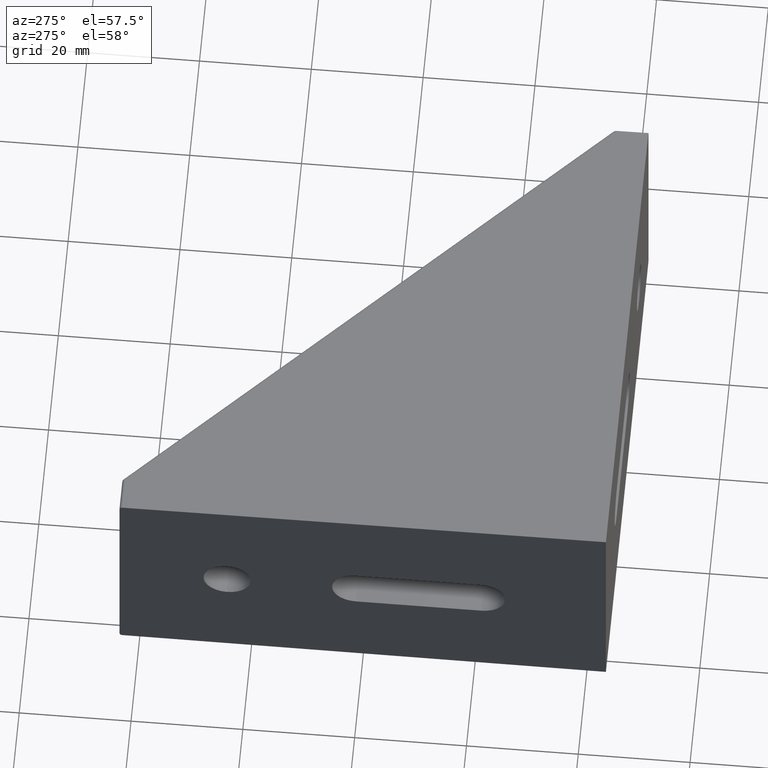
[diagram: clean part render]
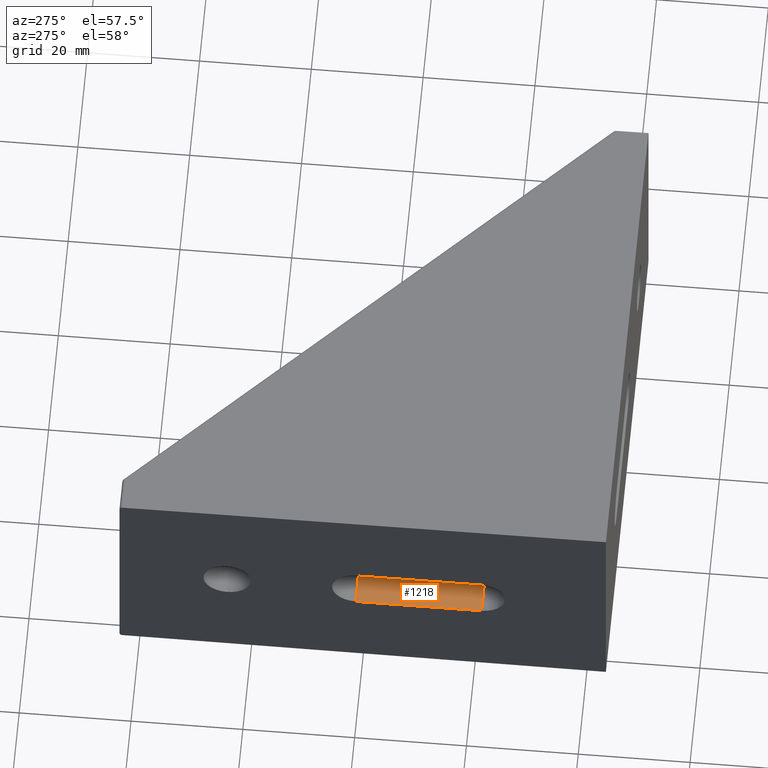
[diagram: same view with one face highlighted and labeled with its STEP entity id]
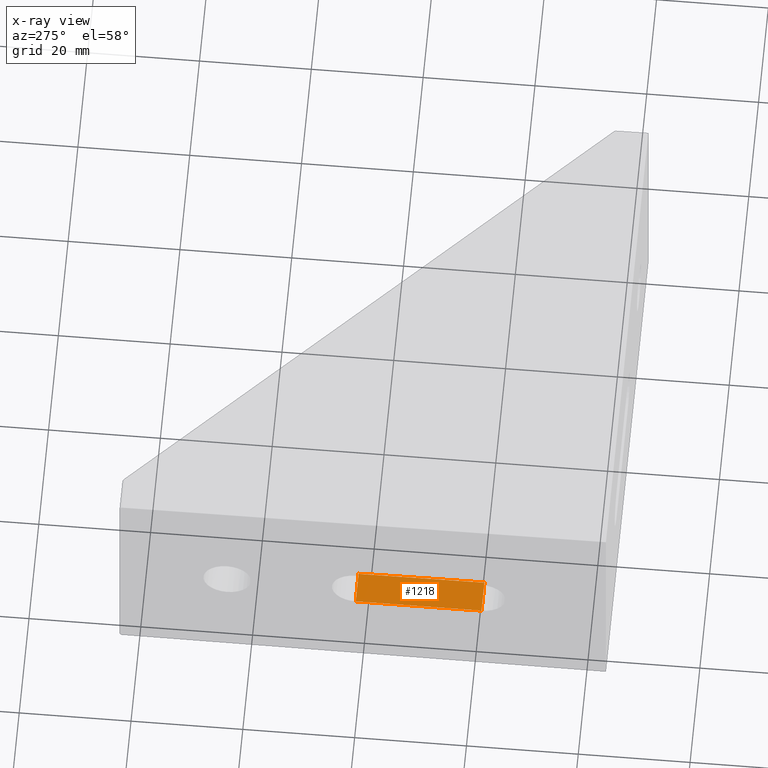
[diagram: x-ray of the same camera — body ghosted, the highlighted face saturated]
A machine part, auxiliary view. The second image highlights one B-rep face of the part: STEP entity #1218.
The next image is the same camera in x-ray: the body ghosted, the highlighted face saturated — about 0% of this face is hidden behind the body in this view.
In plain terms, the highlighted planar face has unit normal (0, 0, -1).
Its self-contained STEP definition (entity closure, byte-faithful):
#527=CARTESIAN_POINT('',(-43.500000000000000,-21.250000000000000,-4.250000000000009));
#528=VERTEX_POINT('',#527);
#536=CARTESIAN_POINT('',(-43.500000000000000,1.250000000000001,-4.250000000000009));
#537=VERTEX_POINT('',#536);
#538=CARTESIAN_POINT('',(-43.500000000000000,-21.250000000000000,-4.250000000000009));
#539=DIRECTION('',(0.0,1.0,0.0));
#540=VECTOR('',#539,22.500000000000000);
#541=LINE('',#538,#540);
#542=EDGE_CURVE('',#528,#537,#541,.T.);
#919=CARTESIAN_POINT('',(-37.570904450836402,-21.250000000000000,-4.250000000000009));
#920=VERTEX_POINT('',#919);
#943=CARTESIAN_POINT('',(-37.669079844302175,1.250000000000001,-4.250000000000005));
#944=VERTEX_POINT('',#943);
#959=CARTESIAN_POINT('',(-37.570904450836402,-21.249999999999996,-4.250000000000008));
#960=DIRECTION('',(-0.004363309284747,0.999990480720734,1.184227E-016));
#961=VECTOR('',#960,22.500214185822365);
#962=LINE('',#959,#961);
#963=EDGE_CURVE('',#920,#944,#962,.T.);
#1157=CARTESIAN_POINT('',(-43.500000000000000,-21.250000000000000,-4.250000000000009));
#1158=DIRECTION('',(1.0,0.0,0.0));
#1159=VECTOR('',#1158,5.929095549163598);
#1160=LINE('',#1157,#1159);
#1161=EDGE_CURVE('',#528,#920,#1160,.T.);
#1198=CARTESIAN_POINT('',(-43.500000000000000,1.250000000000001,-4.250000000000005));
#1199=DIRECTION('',(1.0,0.0,0.0));
#1200=VECTOR('',#1199,5.830920155697825);
#1201=LINE('',#1198,#1200);
#1202=EDGE_CURVE('',#537,#944,#1201,.T.);
#1207=CARTESIAN_POINT('',(-43.796454777458180,-22.375000000000000,-4.250000000000009));
#1208=DIRECTION('',(0.0,0.0,-1.0));
#1209=DIRECTION('',(0.0,1.0,0.0));
#1210=AXIS2_PLACEMENT_3D('',#1207,#1208,#1209);
#1211=PLANE('',#1210);
#1212=ORIENTED_EDGE('',*,*,#963,.T.);
#1213=ORIENTED_EDGE('',*,*,#1202,.F.);
#1214=ORIENTED_EDGE('',*,*,#542,.F.);
#1215=ORIENTED_EDGE('',*,*,#1161,.T.);
#1216=EDGE_LOOP('',(#1212,#1213,#1214,#1215));
#1217=FACE_OUTER_BOUND('',#1216,.T.);
#1218=ADVANCED_FACE('',(#1217),#1211,.F.);